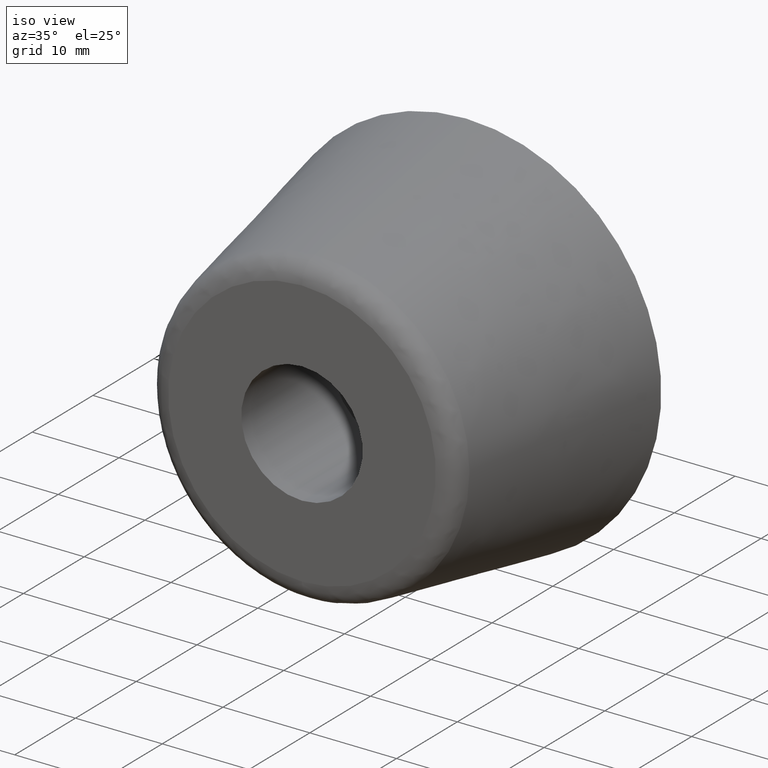
[diagram: clean part render]
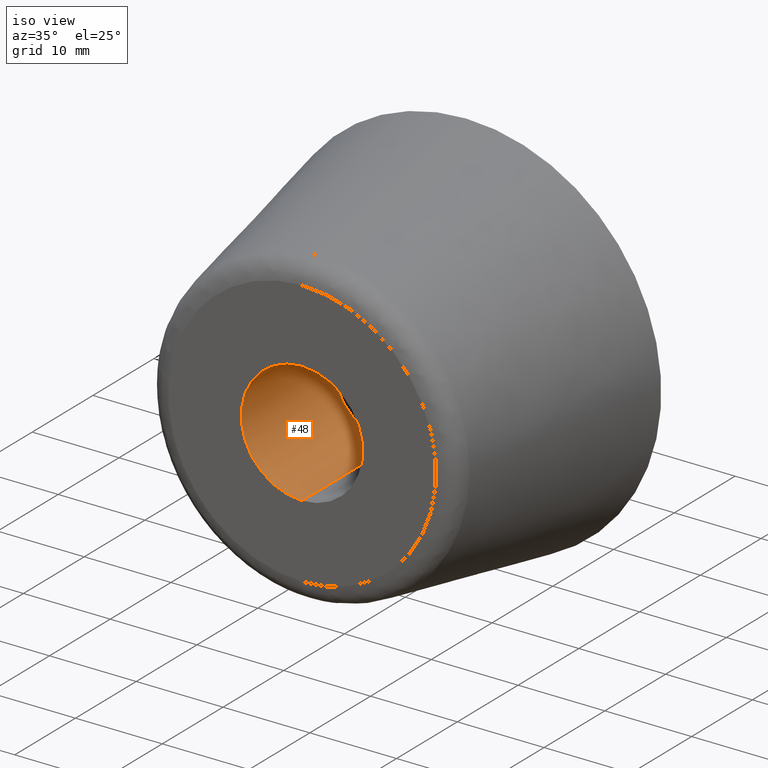
[diagram: same view with one face highlighted and labeled with its STEP entity id]
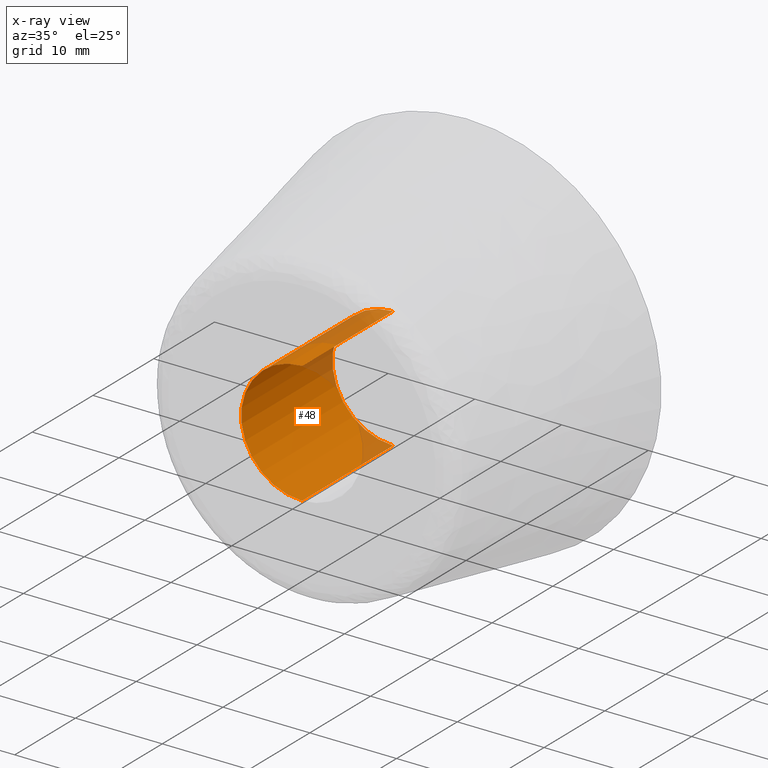
[diagram: x-ray of the same camera — body ghosted, the highlighted face saturated]
A machine part, iso view. The second image highlights one B-rep face of the part: STEP entity #48.
The next image is the same camera in x-ray: the body ghosted, the highlighted face saturated — about 15% of this face is hidden behind the body in this view.
In plain terms, the highlighted cylindrical surface (partial cylindrical patch) has radius 7 mm, axis along (-0, 1, 0).
Its self-contained STEP definition (entity closure, byte-faithful):
#48=ADVANCED_FACE('',(#135),#134,.F.);
#134=CYLINDRICAL_SURFACE('',#222,7.00000000000E+00);
#135=FACE_OUTER_BOUND('',#223,.T.);
#219=CARTESIAN_POINT('',(0.00000000000E+00,0.00000000000E+00,0.00000000000E+00));
#220=DIRECTION('',(-0.00000000000E+00,1.00000000000E+00,0.00000000000E+00));
#221=DIRECTION('',(-0.00000000000E+00,-0.00000000000E+00,1.00000000000E+00));
#222=AXIS2_PLACEMENT_3D('',#219,#220,#221);
#223=EDGE_LOOP('',(#308,#309,#310,#311));
#308=ORIENTED_EDGE('',*,*,#325,.F.);
#309=ORIENTED_EDGE('',*,*,#338,.F.);
#310=ORIENTED_EDGE('',*,*,#330,.T.);
#311=ORIENTED_EDGE('',*,*,#339,.T.);
#325=EDGE_CURVE('',#371,#370,#378,.T.);
#330=EDGE_CURVE('',#412,#413,#414,.T.);
#338=EDGE_CURVE('',#412,#371,#464,.T.);
#339=EDGE_CURVE('',#413,#370,#470,.T.);
#370=VERTEX_POINT('',#508);
#371=VERTEX_POINT('',#509);
#378=CIRCLE('',#517,7.00000000000E+00);
#412=VERTEX_POINT('',#538);
#413=VERTEX_POINT('',#539);
#414=CIRCLE('',#543,7.00000000000E+00);
#464=(BOUNDED_CURVE() B_SPLINE_CURVE(1,(#566,#567),.UNSPECIFIED.,.F.,.F.) B_SPLINE_CURVE_WITH_KNOTS((2,2),(8.33333328360E-02,9.16666666871E-01),.UNSPECIFIED.) CURVE() GEOMETRIC_REPRESENTATION_ITEM() RATIONAL_B_SPLINE_CURVE((1.00000000000E+00,1.00000000000E+00)) REPRESENTATION_ITEM('') );
#470=(BOUNDED_CURVE() B_SPLINE_CURVE(1,(#568,#569),.UNSPECIFIED.,.F.,.F.) B_SPLINE_CURVE_WITH_KNOTS((2,2),(8.33333333333E-02,9.16666666667E-01),.UNSPECIFIED.) CURVE() GEOMETRIC_REPRESENTATION_ITEM() RATIONAL_B_SPLINE_CURVE((7.50000000000E-01,7.50000000000E-01)) REPRESENTATION_ITEM('') );
#508=CARTESIAN_POINT('',(0.00000000000E+00,-1.20000000000E+01,-7.00000000000E+00));
#509=CARTESIAN_POINT('',(2.96059473233E-16,-1.20000000000E+01,7.00000000000E+00));
#514=CARTESIAN_POINT('',(0.00000000000E+00,-1.20000000000E+01,0.00000000000E+00));
#515=DIRECTION('',(0.00000000000E+00,-1.00000000000E+00,-0.00000000000E+00));
#516=DIRECTION('',(-1.22460635382E-16,0.00000000000E+00,-1.00000000000E+00));
#517=AXIS2_PLACEMENT_3D('',#514,#515,#516);
#538=CARTESIAN_POINT('',(2.96059473233E-16,-2.70000000000E+01,7.00000000000E+00));
#539=CARTESIAN_POINT('',(0.00000000000E+00,-2.70000000000E+01,-7.00000000000E+00));
#540=CARTESIAN_POINT('',(0.00000000000E+00,-2.70000000000E+01,0.00000000000E+00));
#541=DIRECTION('',(0.00000000000E+00,-1.00000000000E+00,-0.00000000000E+00));
#542=DIRECTION('',(-1.22460635382E-16,0.00000000000E+00,-1.00000000000E+00));
#543=AXIS2_PLACEMENT_3D('',#540,#541,#542);
#566=CARTESIAN_POINT('',(0.00000000000E+00,-2.70000000090E+01,7.00000000000E+00));
#567=CARTESIAN_POINT('',(0.00000000000E+00,-1.19999999963E+01,7.00000000000E+00));
#568=CARTESIAN_POINT('',(0.00000000000E+00,-2.70000000000E+01,-7.00000000000E+00));
#569=CARTESIAN_POINT('',(0.00000000000E+00,-1.20000000000E+01,-7.00000000000E+00));